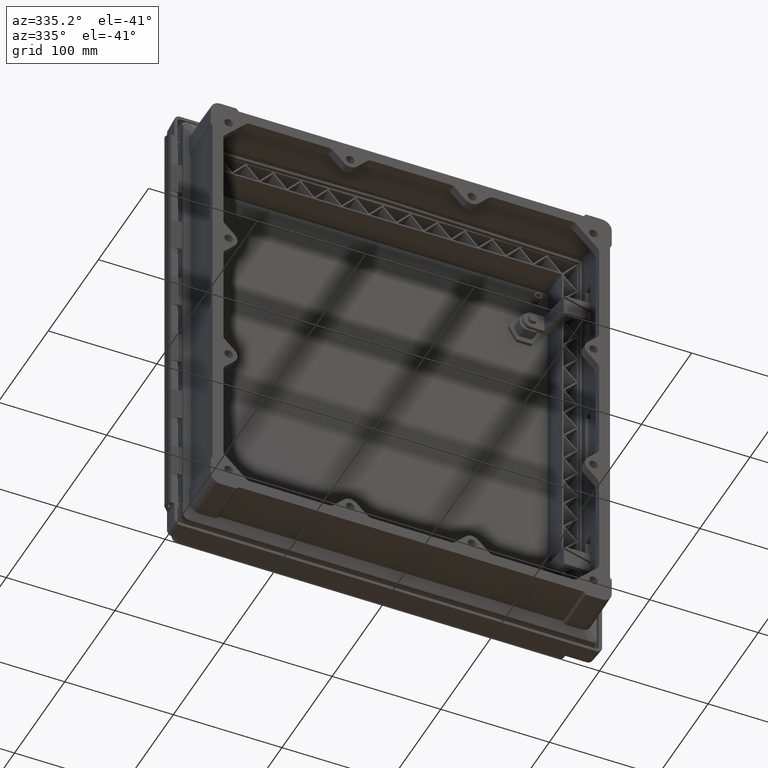
[diagram: clean part render]
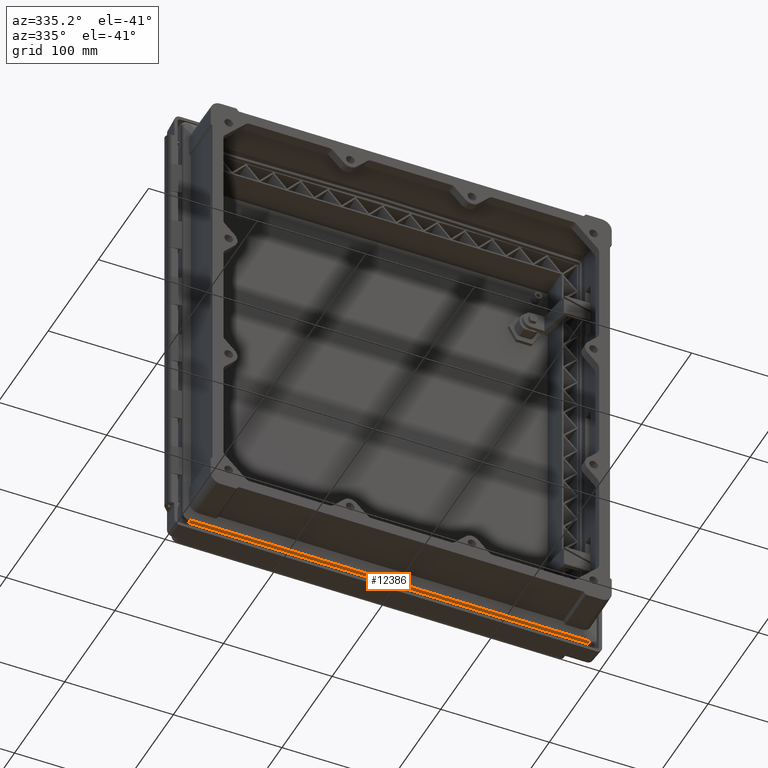
[diagram: same view with one face highlighted and labeled with its STEP entity id]
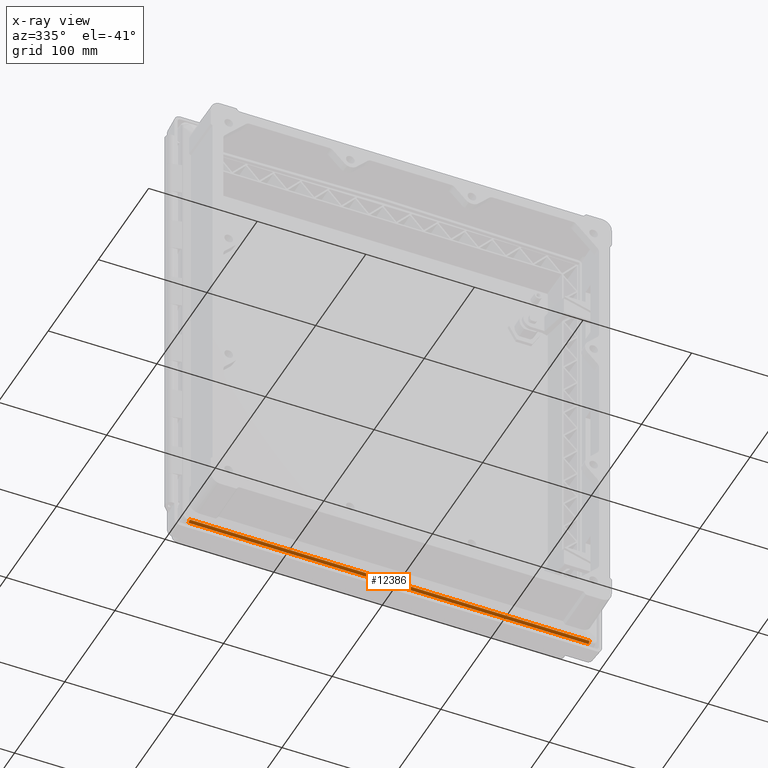
[diagram: x-ray of the same camera — body ghosted, the highlighted face saturated]
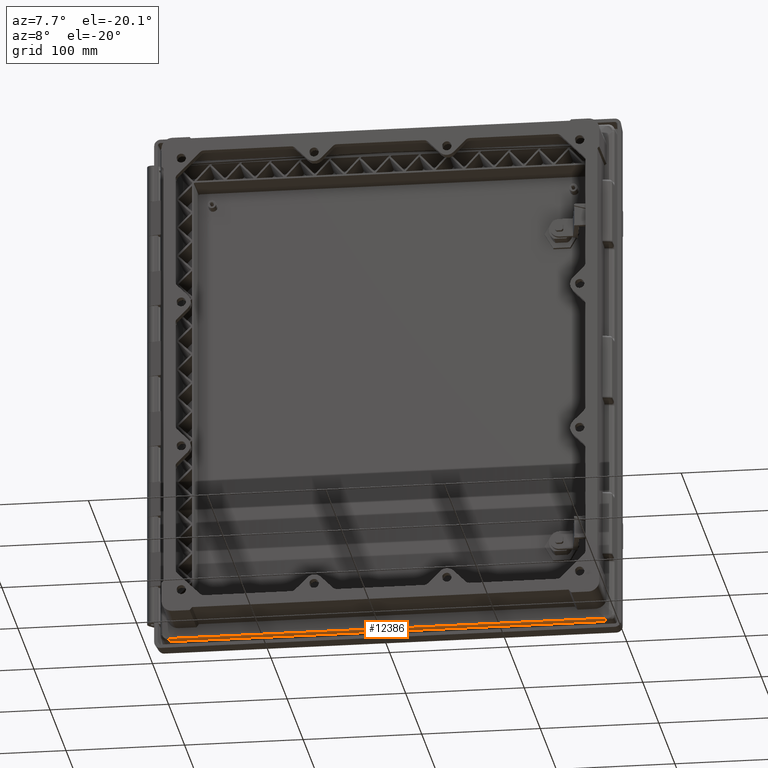
[diagram: same view with one face highlighted and labeled with its STEP entity id]
A machine part, auxiliary view. The second image highlights one B-rep face of the part: STEP entity #12386.
The next image is the same camera in x-ray: the body ghosted, the highlighted face saturated — about 0% of this face is hidden behind the body in this view.
A second angle (auxiliary view) of the same face is appended — the face is thin or edge-on in the first view.
In plain terms, the highlighted cylindrical surface (edge-blend (fillet) strip) has radius 2.5 mm, axis along (1, 0, 0).
Its self-contained STEP definition (entity closure, byte-faithful):
#4238=CARTESIAN_POINT('',(-1.840909177678E2,-1.196072703721E1,
-2.185279295879E2));
#4239=DIRECTION('',(-1.E0,0.E0,0.E0));
#4240=DIRECTION('',(0.E0,-3.489949670250E-2,-9.993908270191E-1));
#4241=AXIS2_PLACEMENT_3D('',#4238,#4239,#4240);
#4253=DIRECTION('',(1.E0,0.E0,0.E0));
#4254=VECTOR('',#4253,3.681818355356E2);
#4255=CARTESIAN_POINT('',(-1.840909177678E2,-1.204797587381E1,
-2.210264066521E2));
#4256=LINE('',#4255,#4254);
#4257=DIRECTION('',(-1.E0,0.E0,0.E0));
#4258=VECTOR('',#4257,3.681818355356E2);
#4259=CARTESIAN_POINT('',(1.840909177678E2,-1.440609603571E1,
-2.190477088306E2));
#4260=LINE('',#4259,#4258);
#4261=CARTESIAN_POINT('',(1.840909177678E2,-1.196072703721E1,
-2.185279295879E2));
#4262=DIRECTION('',(1.E0,0.E0,0.E0));
#4263=DIRECTION('',(0.E0,-9.781476007338E-1,-2.079116908178E-1));
#4264=AXIS2_PLACEMENT_3D('',#4261,#4262,#4263);
#5601=CARTESIAN_POINT('',(1.840909177678E2,-1.440609603905E1,
-2.190477088149E2));
#5602=CARTESIAN_POINT('',(1.840909177678E2,-1.204797577897E1,
-2.210264066554E2));
#5603=VERTEX_POINT('',#5601);
#5604=VERTEX_POINT('',#5602);
#5611=CARTESIAN_POINT('',(-1.840909177678E2,-1.204797577897E1,
-2.210264066554E2));
#5612=CARTESIAN_POINT('',(-1.840909177678E2,-1.440609603905E1,
-2.190477088149E2));
#5613=VERTEX_POINT('',#5611);
#5614=VERTEX_POINT('',#5612);
#12373=CARTESIAN_POINT('',(-1.915111092271E2,-1.196072703721E1,
-2.185279295879E2));
#12374=DIRECTION('',(1.E0,0.E0,0.E0));
#12375=DIRECTION('',(0.E0,0.E0,-1.E0));
#12376=AXIS2_PLACEMENT_3D('',#12373,#12374,#12375);
#12377=CYLINDRICAL_SURFACE('',#12376,2.5E0);
#12379=ORIENTED_EDGE('',*,*,#12378,.T.);
#12381=ORIENTED_EDGE('',*,*,#12380,.F.);
#12382=ORIENTED_EDGE('',*,*,#12363,.T.);
#12383=ORIENTED_EDGE('',*,*,#9410,.F.);
#12384=EDGE_LOOP('',(#12379,#12381,#12382,#12383));
#12385=FACE_OUTER_BOUND('',#12384,.F.);
#12386=ADVANCED_FACE('',(#12385),#12377,.T.);
#4242=CIRCLE('',#4241,2.5E0);
#4265=CIRCLE('',#4264,2.5E0);
#9410=EDGE_CURVE('',#5603,#5614,#4260,.T.);
#12363=EDGE_CURVE('',#5613,#5614,#4242,.T.);
#12378=EDGE_CURVE('',#5603,#5604,#4265,.T.);
#12380=EDGE_CURVE('',#5613,#5604,#4256,.T.);